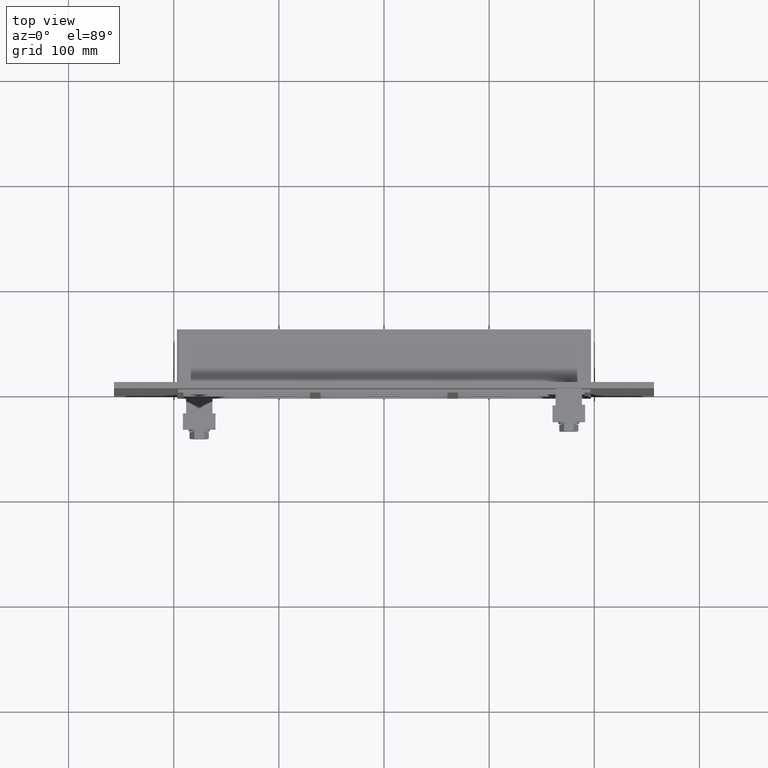
[diagram: clean part render]
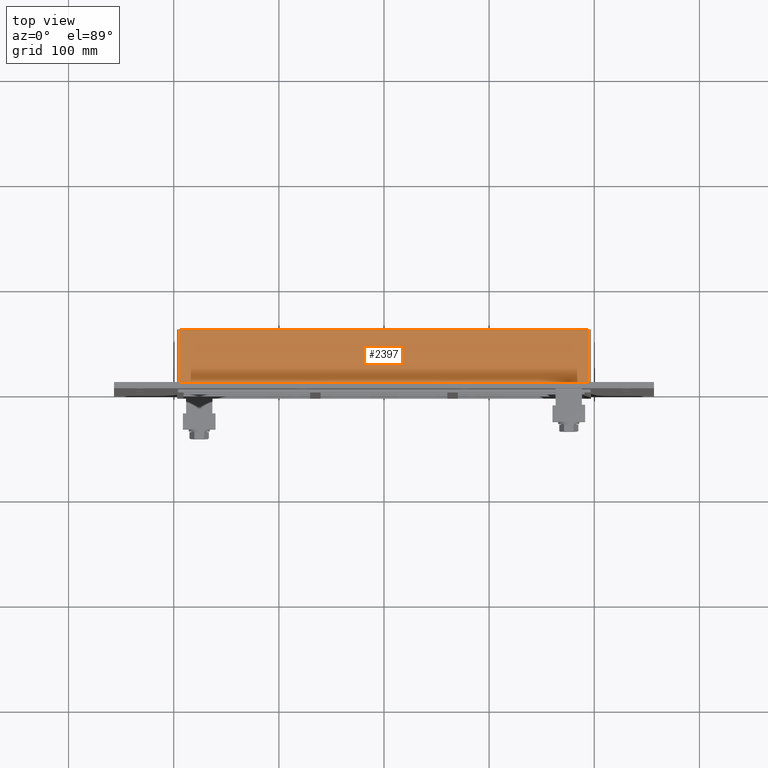
[diagram: same view with one face highlighted and labeled with its STEP entity id]
A machine part, top view. The second image highlights one B-rep face of the part: STEP entity #2397.
In plain terms, the highlighted planar face has unit normal (0, 0, 1).
Its self-contained STEP definition (entity closure, byte-faithful):
#915=CARTESIAN_POINT('',(-194.75,57.0,169.50000000000011));
#916=VERTEX_POINT('',#915);
#924=CARTESIAN_POINT('',(194.75,57.0,169.50000000000011));
#925=VERTEX_POINT('',#924);
#926=CARTESIAN_POINT('',(-194.75000000000003,57.0,169.50000000000011));
#927=DIRECTION('',(1.0,0.0,0.0));
#928=VECTOR('',#927,389.5);
#929=LINE('',#926,#928);
#930=EDGE_CURVE('',#916,#925,#929,.T.);
#1827=CARTESIAN_POINT('',(-194.75,6.000000000000001,169.50000000000011));
#1828=VERTEX_POINT('',#1827);
#1878=CARTESIAN_POINT('',(194.75,6.000000000000001,169.50000000000011));
#1879=VERTEX_POINT('',#1878);
#1887=CARTESIAN_POINT('',(-194.75,6.000000000000001,169.50000000000011));
#1888=DIRECTION('',(1.0,0.0,0.0));
#1889=VECTOR('',#1888,389.5);
#1890=LINE('',#1887,#1889);
#1891=EDGE_CURVE('',#1828,#1879,#1890,.T.);
#2370=CARTESIAN_POINT('',(-194.75,6.000000000000001,169.50000000000011));
#2371=DIRECTION('',(0.0,1.0,0.0));
#2372=VECTOR('',#2371,51.0);
#2373=LINE('',#2370,#2372);
#2374=EDGE_CURVE('',#1828,#916,#2373,.T.);
#2381=CARTESIAN_POINT('',(-196.75000000000006,0.0,169.50000000000011));
#2382=DIRECTION('',(0.0,0.0,1.0));
#2383=DIRECTION('',(1.0,0.0,0.0));
#2384=AXIS2_PLACEMENT_3D('',#2381,#2382,#2383);
#2385=PLANE('',#2384);
#2386=ORIENTED_EDGE('',*,*,#1891,.T.);
#2387=CARTESIAN_POINT('',(194.75,57.0,169.50000000000011));
#2388=DIRECTION('',(0.0,-1.0,0.0));
#2389=VECTOR('',#2388,51.0);
#2390=LINE('',#2387,#2389);
#2391=EDGE_CURVE('',#925,#1879,#2390,.T.);
#2392=ORIENTED_EDGE('',*,*,#2391,.F.);
#2393=ORIENTED_EDGE('',*,*,#930,.F.);
#2394=ORIENTED_EDGE('',*,*,#2374,.F.);
#2395=EDGE_LOOP('',(#2386,#2392,#2393,#2394));
#2396=FACE_OUTER_BOUND('',#2395,.T.);
#2397=ADVANCED_FACE('',(#2396),#2385,.T.);